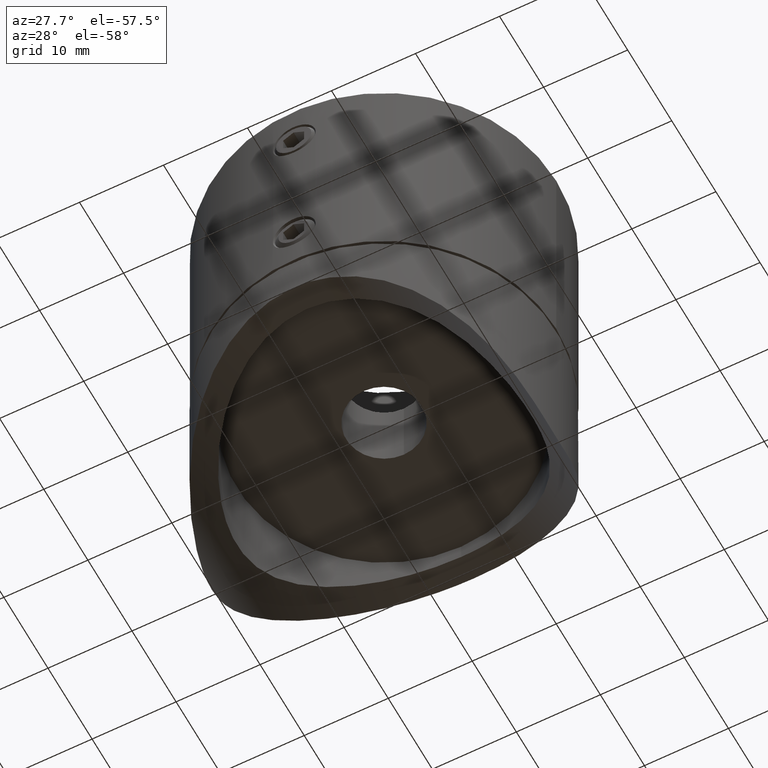
[diagram: clean part render]
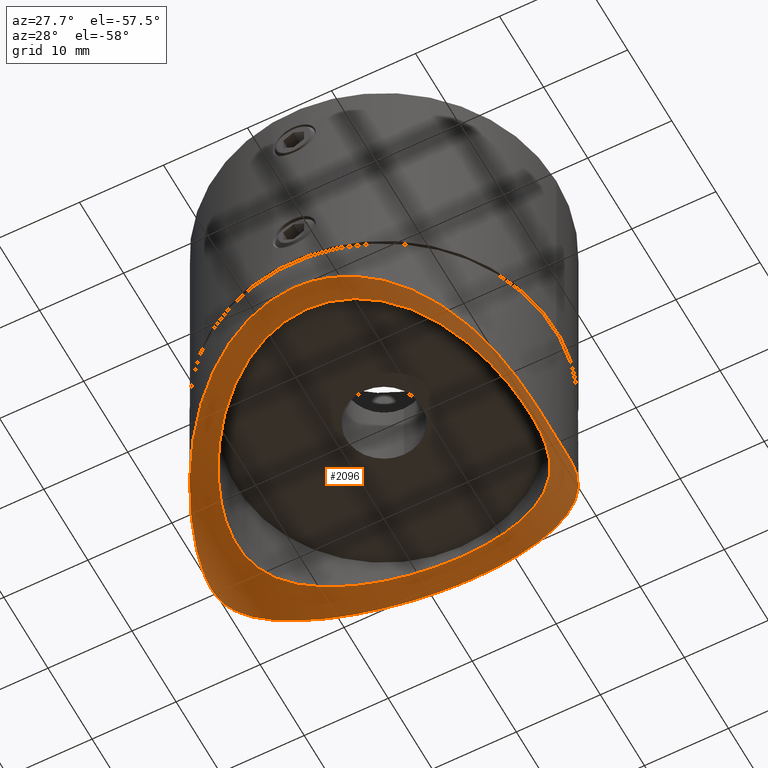
[diagram: same view with one face highlighted and labeled with its STEP entity id]
A machine part, auxiliary view. The second image highlights one B-rep face of the part: STEP entity #2096.
In plain terms, the highlighted cylindrical surface (partial cylindrical patch) has radius 21.2 mm, axis along (0, 1, 0).
Its self-contained STEP definition (entity closure, byte-faithful):
#26 = CARTESIAN_POINT ( 'NONE',  ( 9.841461112915089515, -17.98656134671438522, -2.419577668517835622 ) ) ;
#34 = CARTESIAN_POINT ( 'NONE',  ( -17.24386337891472465, 3.040406141282110397, -8.865839844872155595 ) ) ;
#81 = CARTESIAN_POINT ( 'NONE',  ( 0.7642313618833553868, -20.48663700312583913, -0.01292153580365971305 ) ) ;
#88 = CARTESIAN_POINT ( 'NONE',  ( -9.083739000497836003, -14.96880593915698832, -2.036885764455773185 ) ) ;
#185 = CARTESIAN_POINT ( 'NONE',  ( 11.03039576817645795, -17.29310091935674265, -3.082857097012577263 ) ) ;
#295 = CARTESIAN_POINT ( 'NONE',  ( 7.497553294319823536, -15.82324873608317439, -1.362004697499437977 ) ) ;
#352 = CARTESIAN_POINT ( 'NONE',  ( 13.21346104451343173, -11.48681872448379337, -4.615597683663826167 ) ) ;
#403 = CARTESIAN_POINT ( 'NONE',  ( 17.01303445160383987, 4.141714093986752943, -8.549379967654234136 ) ) ;
#714 = CARTESIAN_POINT ( 'NONE',  ( -11.10735227665930402, -17.24395469007586001, -3.129771455036830741 ) ) ;
#774 = CARTESIAN_POINT ( 'NONE',  ( -17.00600038624242316, -11.46349641894115479, -8.529144034810848041 ) ) ;
#819 = DIRECTION ( 'NONE',  ( 0.000000000000000000, 0.000000000000000000, 1.000000000000000000 ) ) ;
#868 = CARTESIAN_POINT ( 'NONE',  ( -20.27713442623302953, 3.098829431040879268, -15.00583327494984154 ) ) ;
#876 = CARTESIAN_POINT ( 'NONE',  ( -5.067655612918739116, 16.75283616284645305, -0.6125111074320683802 ) ) ;
#933 = CARTESIAN_POINT ( 'NONE',  ( 9.215718466126787689E-16, -20.49999999999998934, -4.266536326910986971E-18 ) ) ;
#991 = CARTESIAN_POINT ( 'NONE',  ( 15.94553080461040828, 12.89831506078872714, -7.217206040546393808 ) ) ;
#998 = CARTESIAN_POINT ( 'NONE',  ( -3.906236867193531026, 17.06110921966444849, -0.3608496445155510712 ) ) ;
#1050 = CARTESIAN_POINT ( 'NONE',  ( -2.878505128604087471, 20.31096422291976467, -0.1827484106595278768 ) ) ;
#1055 = CARTESIAN_POINT ( 'NONE',  ( -8.043638371016083255, 15.55236825713667059, -1.577650751387617012 ) ) ;
#1109 = CARTESIAN_POINT ( 'NONE',  ( 17.03329377143999324, 11.42275566446002344, -8.565989573407854607 ) ) ;
#1174 = CARTESIAN_POINT ( 'NONE',  ( 19.89097583367536259, -5.001487639940303431, -13.85391135167886745 ) ) ;
#1178 = CARTESIAN_POINT ( 'NONE',  ( -14.23847569933384527, 10.18855310605379927, -5.487715213909245549 ) ) ;
#1229 = CARTESIAN_POINT ( 'NONE',  ( 1.696740097316815188, 20.48751249303150601, -0.01207516082844450542 ) ) ;
#1235 = CARTESIAN_POINT ( 'NONE',  ( -16.30806594274449850, 6.372029755616434699, -7.650148169647616569 ) ) ;
#1334 = CARTESIAN_POINT ( 'NONE',  ( 0.3830919584143543943, -20.49730679439932146, -0.002604311522212513028 ) ) ;
#1338 = CARTESIAN_POINT ( 'NONE',  ( -13.91609126854267053, 10.62481324897706259, -5.200591525558388994 ) ) ;
#1403 = CARTESIAN_POINT ( 'NONE',  ( -17.33827104258254082, 2.451050158928962386, -9.000120589566094509 ) ) ;
#1452 = CARTESIAN_POINT ( 'NONE',  ( 14.22241351837834777, -10.21106302151933676, -5.473122119973910849 ) ) ;
#1504 = CARTESIAN_POINT ( 'NONE',  ( 8.913125645696378996, -18.46427535726907010, -1.961554622624016142 ) ) ;
#1626 = CARTESIAN_POINT ( 'NONE',  ( 11.71504083009419261, -13.04522999051553001, -3.505981036777544801 ) ) ;
#1734 = DIRECTION ( 'NONE',  ( -0.000000000000000000, 1.000000000000000000, -0.000000000000000000 ) ) ;
#2027 = CARTESIAN_POINT ( 'NONE',  ( -19.41892124925670871, -6.599070937861008623, -12.68077719138882742 ) ) ;
#2083 = CARTESIAN_POINT ( 'NONE',  ( -20.49432207269039097, -0.6134812045934286973, -15.77526305258913197 ) ) ;
#2096 = ADVANCED_FACE ( 'NONE', ( #4863, #14333 ), #8706, .F. ) ;
#2125 = EDGE_CURVE ( 'NONE', #11399, #11399, #15808, .T. ) ;
#2145 = CARTESIAN_POINT ( 'NONE',  ( -14.21884943580559835, -14.82151765865384085, -5.428080517583356190 ) ) ;
#2202 = CARTESIAN_POINT ( 'NONE',  ( -15.78829421948736034, 13.09036836926673786, -7.039799991362338361 ) ) ;
#2263 = CARTESIAN_POINT ( 'NONE',  ( -15.90895934899534758, -12.94354335384951682, -7.175474793278679542 ) ) ;
#2318 = CARTESIAN_POINT ( 'NONE',  ( 13.32435051335238896, 15.63484417006679905, -4.659818248977414257 ) ) ;
#2380 = CARTESIAN_POINT ( 'NONE',  ( 20.43608852305566970, -1.659733611259567754, -15.55958760687685150 ) ) ;
#2441 = CARTESIAN_POINT ( 'NONE',  ( 16.68841118729813999, 11.92155258730217504, -8.112776780501754104 ) ) ;
#2447 = CARTESIAN_POINT ( 'NONE',  ( -7.568379588315958806, -15.78940386503816029, -1.388997083494236451 ) ) ;
#2491 = CARTESIAN_POINT ( 'NONE',  ( -3.620119219532377475, 20.19172353382225893, -0.2979908851741180364 ) ) ;
#2498 = CARTESIAN_POINT ( 'NONE',  ( -17.46699287505471787, 1.235900291459521405, -9.185140022539869165 ) ) ;
#2543 = CARTESIAN_POINT ( 'NONE',  ( 20.41130226497747557, 1.913336815779760558, -15.47084501130666467 ) ) ;
#2550 = CARTESIAN_POINT ( 'NONE',  ( -15.65583057623333119, 7.897346450912092308, -6.889829957757155121 ) ) ;
#2599 = CARTESIAN_POINT ( 'NONE',  ( 0.9541544136438472323, -20.47866037672264028, -0.02063448680320939879 ) ) ;
#2602 = CARTESIAN_POINT ( 'NONE',  ( -12.87097464404788560, 11.86932399460175169, -4.347759016917471797 ) ) ;
#2755 = CARTESIAN_POINT ( 'NONE',  ( 4.847376137837566823, -19.92214718952595121, -0.5582583929048398064 ) ) ;
#2914 = CARTESIAN_POINT ( 'NONE',  ( -1.277528164808326538, -17.49584459206828413, -0.003430165658339822971 ) ) ;
#3077 = CARTESIAN_POINT ( 'NONE',  ( 17.37796659204369121, 2.085241071745541852, -9.057133369806717127 ) ) ;
#3129 = CARTESIAN_POINT ( 'NONE',  ( 17.33462974748771401, -2.475738546407064700, -8.994938054514005188 ) ) ;
#3187 = CARTESIAN_POINT ( 'NONE',  ( 16.49501262945719660, -5.872939585915643690, -7.879567121977553157 ) ) ;
#3303 = CARTESIAN_POINT ( 'NONE',  ( -11.66814349195485256, -16.86842062671308895, -3.487899409657549743 ) ) ;
#3359 = CARTESIAN_POINT ( 'NONE',  ( -16.89571969682834052, 11.62530910430284159, -8.382478658806119753 ) ) ;
#3403 = CARTESIAN_POINT ( 'NONE',  ( 8.086705730690027849, 15.52996890337844427, -1.595404497979376224 ) ) ;
#3416 = CARTESIAN_POINT ( 'NONE',  ( -20.20443642303519383, -3.485553561580062354, -14.77716666690977476 ) ) ;
#3467 = CARTESIAN_POINT ( 'NONE',  ( -8.978697800540446750, -18.43253778770257156, -1.992014549829556724 ) ) ;
#3521 = CARTESIAN_POINT ( 'NONE',  ( -18.52372103676701087, -8.865506147782214796, -10.83791561958749838 ) ) ;
#3580 = CARTESIAN_POINT ( 'NONE',  ( 19.22160244616708624, 7.151640927736705677, -12.24273817302588974 ) ) ;
#3587 = CARTESIAN_POINT ( 'NONE',  ( -9.524517569277668017, 14.69170826759712156, -2.252846591963477696 ) ) ;
#3636 = CARTESIAN_POINT ( 'NONE',  ( 18.44834936037196016, -9.019679096598405721, -10.70461715553551230 ) ) ;
#3693 = CARTESIAN_POINT ( 'NONE',  ( 20.14695331553193114, 3.802390341181701938, -14.59827626580708859 ) ) ;
#3700 = CARTESIAN_POINT ( 'NONE',  ( -6.507517457610140887, -16.25539481356940286, -1.015639155783585768 ) ) ;
#3752 = CARTESIAN_POINT ( 'NONE',  ( 16.92360664457421038, -11.58453050805760220, -8.419451530486103508 ) ) ;
#3796 = AXIS2_PLACEMENT_3D ( 'NONE', #13305, #1734, #819 ) ;
#3807 = CARTESIAN_POINT ( 'NONE',  ( 1.522016069194902732, -20.44693700694597283, -0.05130727842084750051 ) ) ;
#3813 = CARTESIAN_POINT ( 'NONE',  ( -16.52182079844146756, -5.797052159638316660, -7.912908347491365291 ) ) ;
#3921 = CARTESIAN_POINT ( 'NONE',  ( -17.50067843918114363, -0.5873231742949008849, -9.234789777794508936 ) ) ;
#3975 = CARTESIAN_POINT ( 'NONE',  ( 3.018721505754626389, -20.29045195685616676, -0.2025719502125131188 ) ) ;
#4142 = CARTESIAN_POINT ( 'NONE',  ( -4.252397677670929355, -16.97813969774495391, -0.4287410033487076277 ) ) ;
#4245 = CARTESIAN_POINT ( 'NONE',  ( 16.84316366280751254, -4.783795444377584083, -8.322608512135147407 ) ) ;
#4359 = CARTESIAN_POINT ( 'NONE',  ( 15.15509232401279860, 8.816608068498799966, -6.352814690414372301 ) ) ;
#4418 = CARTESIAN_POINT ( 'NONE',  ( 17.47068367874127759, 1.180264632735980923, -9.190547752342899557 ) ) ;
#4546 = EDGE_LOOP ( 'NONE', ( #15840 ) ) ;
#4608 = CARTESIAN_POINT ( 'NONE',  ( -19.34598171857588866, 6.809435502680198482, -12.51623025835363734 ) ) ;
#4670 = CARTESIAN_POINT ( 'NONE',  ( -20.42687228996033966, -1.739898111126267022, -15.52675581487862821 ) ) ;
#4722 = CARTESIAN_POINT ( 'NONE',  ( -20.49663337245055672, 0.5337579812902039089, -15.78445365410453149 ) ) ;
#4729 = CARTESIAN_POINT ( 'NONE',  ( -4.198211667982922890, 16.99162043731080018, -0.4177193951831520979 ) ) ;
#4780 = CARTESIAN_POINT ( 'NONE',  ( -20.50226138884681149, -0.2327125493970433612, -15.80579943155638034 ) ) ;
#4838 = CARTESIAN_POINT ( 'NONE',  ( 11.58936276531934872, -16.92248596471906907, -3.436388386139449747 ) ) ;
#4863 = FACE_OUTER_BOUND ( 'NONE', #6406, .T. ) ;
#4889 = CARTESIAN_POINT ( 'NONE',  ( 8.118913609752830496, 18.83692048072827063, -1.603763549573936409 ) ) ;
#4946 = CARTESIAN_POINT ( 'NONE',  ( 9.387150974103604995, 18.22780547730687317, -2.188407184620552837 ) ) ;
#5005 = CARTESIAN_POINT ( 'NONE',  ( -1.751095325312872264, 20.42856896656491017, -0.06906700597614252868 ) ) ;
#5060 = CARTESIAN_POINT ( 'NONE',  ( 19.35473527081932232, -6.784289525167245039, -12.53590856107385854 ) ) ;
#5069 = CARTESIAN_POINT ( 'NONE',  ( -17.46985179758621598, -1.193845812649097837, -9.189324701120186845 ) ) ;
#5117 = CARTESIAN_POINT ( 'NONE',  ( -16.32442710002123931, -6.330230443123496364, -7.669859431588230692 ) ) ;
#5227 = CARTESIAN_POINT ( 'NONE',  ( -13.94038394261453639, -10.59293742111977643, -5.221764300403955339 ) ) ;
#5279 = CARTESIAN_POINT ( 'NONE',  ( 7.956851302057527775, -18.90586179831648295, -1.537475375376008424 ) ) ;
#5286 = CARTESIAN_POINT ( 'NONE',  ( 0.2465697910313439101, -17.50091767167528189, 0.0007575105885289126458 ) ) ;
#5508 = CARTESIAN_POINT ( 'NONE',  ( 9.010682868421870495, -15.01277645573478203, -2.002495604114043815 ) ) ;
#5541 = EDGE_CURVE ( 'NONE', #8162, #8162, #9707, .T. ) ;
#5618 = CARTESIAN_POINT ( 'NONE',  ( 16.52469693459130085, 5.788760017350249143, -7.916501575781205169 ) ) ;
#5669 = CARTESIAN_POINT ( 'NONE',  ( 14.25871095076460016, 10.16016792766058963, -5.506112789873336411 ) ) ;
#5834 = CARTESIAN_POINT ( 'NONE',  ( 3.058516256898806240, 17.24129890699676793, -0.2131673490597825460 ) ) ;
#5848 = CARTESIAN_POINT ( 'NONE',  ( -20.46681708666152844, -1.181227092065037843, -15.67273572342680765 ) ) ;
#5903 = CARTESIAN_POINT ( 'NONE',  ( -20.41053928781584403, -1.921523092601340243, -15.46812153448825100 ) ) ;
#5948 = CARTESIAN_POINT ( 'NONE',  ( 2.450482594706057338, 17.33840392213179626, -0.1332271744567321836 ) ) ;
#5963 = CARTESIAN_POINT ( 'NONE',  ( -13.12364497339234326, 15.80428829669920354, -4.499481910833316611 ) ) ;
#6012 = CARTESIAN_POINT ( 'NONE',  ( -19.94435088291013258, -4.786188735814209672, -14.00035477759032787 ) ) ;
#6061 = CARTESIAN_POINT ( 'NONE',  ( -15.38208838164237235, 13.56618386351012973, -6.598497805225533419 ) ) ;
#6113 = CARTESIAN_POINT ( 'NONE',  ( 20.27888976542784150, -3.086682699966034171, -15.01168580510541872 ) ) ;
#6171 = CARTESIAN_POINT ( 'NONE',  ( -1.372788483777772850, 20.45753804440224144, -0.04105766633444453417 ) ) ;
#6228 = CARTESIAN_POINT ( 'NONE',  ( 10.00140248597485737, 17.89814080408042685, -2.504246121058995023 ) ) ;
#6237 = CARTESIAN_POINT ( 'NONE',  ( -6.466438711126498262, 16.27179417740867606, -1.002424180671938503 ) ) ;
#6287 = CARTESIAN_POINT ( 'NONE',  ( 20.42750280538819752, 1.732403070217047203, -15.52903041020935682 ) ) ;
#6337 = CARTESIAN_POINT ( 'NONE',  ( 16.57517562174928116, -12.07839893601357240, -7.969684687258277833 ) ) ;
#6395 = CARTESIAN_POINT ( 'NONE',  ( 9.226220393829663635, -18.30976797123930666, -2.109806783839629052 ) ) ;
#6401 = CARTESIAN_POINT ( 'NONE',  ( -13.25709795518398515, -11.43651964025425904, -4.650447911015619162 ) ) ;
#6406 = EDGE_LOOP ( 'NONE', ( #10985 ) ) ;
#6456 = CARTESIAN_POINT ( 'NONE',  ( -16.50506731380759717, 5.844912491493738926, -7.892026179087148208 ) ) ;
#6501 = CARTESIAN_POINT ( 'NONE',  ( 7.296751866461145042, -19.17109791775982686, -1.282242173744694735 ) ) ;
#6506 = CARTESIAN_POINT ( 'NONE',  ( -17.19095212691278007, -3.287435342662163418, -8.793489093231034559 ) ) ;
#6563 = CARTESIAN_POINT ( 'NONE',  ( -3.957094607793416596, -17.04942438003020300, -0.3704163064312105402 ) ) ;
#6720 = CARTESIAN_POINT ( 'NONE',  ( 5.875721920608387272, -16.49492799653786079, -0.8220339605937884153 ) ) ;
#6779 = CARTESIAN_POINT ( 'NONE',  ( 9.494865487268153714, -14.71098971236246200, -2.237894517711387365 ) ) ;
#6940 = CARTESIAN_POINT ( 'NONE',  ( 11.75184374789024666, 13.01284439820549999, -3.530066077978521122 ) ) ;
#7004 = CARTESIAN_POINT ( 'NONE',  ( 12.89562394974593573, 11.84273493110535291, -4.366521986897741847 ) ) ;
#7119 = CARTESIAN_POINT ( 'NONE',  ( 7.564560770108174736, 15.79141555487498572, -1.387400769369391940 ) ) ;
#7132 = CARTESIAN_POINT ( 'NONE',  ( -17.97537472250883184, -9.929707987710784778, -9.904670713291322315 ) ) ;
#7190 = CARTESIAN_POINT ( 'NONE',  ( -18.43274174719996239, 9.052168211354857164, -10.67671455753958121 ) ) ;
#7257 = CARTESIAN_POINT ( 'NONE',  ( -6.151346412837717992, 19.55871947325180571, -0.9088060214795429248 ) ) ;
#7309 = CARTESIAN_POINT ( 'NONE',  ( -19.21170983849740921, -7.178374827038802586, -12.22138855278443437 ) ) ;
#7367 = CARTESIAN_POINT ( 'NONE',  ( -8.015486598542638674, -18.88130897323156887, -1.561088330099832833 ) ) ;
#7378 = CARTESIAN_POINT ( 'NONE',  ( -4.778612427083569258, 16.83760700237858998, -0.5434506362205558938 ) ) ;
#7433 = CARTESIAN_POINT ( 'NONE',  ( 17.99476556905258207, 9.893845905984123945, -9.936178411902057306 ) ) ;
#7487 = CARTESIAN_POINT ( 'NONE',  ( 20.35644639149187185, 2.448175239211681120, -15.27775393475622145 ) ) ;
#7544 = CARTESIAN_POINT ( 'NONE',  ( -0.2263734483224016381, 20.50235836449718363, 0.002280488986525659994 ) ) ;
#7603 = CARTESIAN_POINT ( 'NONE',  ( 20.40320062870918250, -2.021669893133414941, -15.44052478276726426 ) ) ;
#7665 = CARTESIAN_POINT ( 'NONE',  ( 15.42308226883704236, -13.51942255355326239, -6.641935572222063655 ) ) ;
#7722 = CARTESIAN_POINT ( 'NONE',  ( -11.76022229711522016, -13.00464765559365254, -3.535992552796882737 ) ) ;
#7729 = CARTESIAN_POINT ( 'NONE',  ( -1.192622389734054877E-15, 17.50000000000000000, -5.897859040141040032E-18 ) ) ;
#7826 = CARTESIAN_POINT ( 'NONE',  ( -9.562018155268978248, -14.66722832022718848, -2.271821499043444881 ) ) ;
#7880 = CARTESIAN_POINT ( 'NONE',  ( 13.89762547964845396, -10.64887614781257774, -5.184571220463790375 ) ) ;
#7922 = CARTESIAN_POINT ( 'NONE',  ( 5.920686856686777411, -19.62986888477626479, -0.8402099279582746494 ) ) ;
#8046 = CARTESIAN_POINT ( 'NONE',  ( 6.430025487511463744, -16.28629111231520454, -0.9907413482544245031 ) ) ;
#8099 = CARTESIAN_POINT ( 'NONE',  ( 4.158952617992463630, -17.00922726916944328, -0.4033924051184962778 ) ) ;
#8151 = CARTESIAN_POINT ( 'NONE',  ( 17.19306620750767678, 3.276470449463080303, -8.796417594185959032 ) ) ;
#8162 = VERTEX_POINT ( 'NONE', #9130 ) ;
#8208 = CARTESIAN_POINT ( 'NONE',  ( 15.67295982877751470, 7.865093308166934527, -6.908389598791436548 ) ) ;
#8264 = CARTESIAN_POINT ( 'NONE',  ( 16.86658117550648939, 4.700403255957337656, -8.353390384371264688 ) ) ;
#8313 = CARTESIAN_POINT ( 'NONE',  ( 17.23968166261209944, -3.064352586436271064, -8.859963496478812317 ) ) ;
#8431 = CARTESIAN_POINT ( 'NONE',  ( 9.554674410092220072, 14.67194539536051678, -2.268156560611843009 ) ) ;
#8445 = CARTESIAN_POINT ( 'NONE',  ( -20.16341109901306083, 3.755762394345791400, -14.63837596914218686 ) ) ;
#8504 = CARTESIAN_POINT ( 'NONE',  ( -14.08381127604604366, 14.94978964191773763, -5.307350842626636478 ) ) ;
#8561 = CARTESIAN_POINT ( 'NONE',  ( -19.78554300062381799, -5.401345008256844160, -13.57084880749763656 ) ) ;
#8622 = CARTESIAN_POINT ( 'NONE',  ( -20.43557800254245294, 1.666346726742690132, -15.55772712976704852 ) ) ;
#8678 = CARTESIAN_POINT ( 'NONE',  ( -1.548205718626115779, -20.50000000000000355, 1.445602896647333986E-16 ) ) ;
#8706 = CYLINDRICAL_SURFACE ( 'NONE', #3796, 21.19999999999999929 ) ;
#8737 = CARTESIAN_POINT ( 'NONE',  ( 15.54594185057103140, 13.37799421477956585, -6.773213270913272410 ) ) ;
#8794 = CARTESIAN_POINT ( 'NONE',  ( 20.49437964968215198, 0.6105614207077942890, -15.77548850841519190 ) ) ;
#8855 = CARTESIAN_POINT ( 'NONE',  ( 11.74068973872171995, 16.81785871225319795, -3.536048383814050844 ) ) ;
#8907 = CARTESIAN_POINT ( 'NONE',  ( 19.14440100001821321, -7.355505532082024622, -12.07883921071141309 ) ) ;
#8914 = CARTESIAN_POINT ( 'NONE',  ( -10.90237164851524376, 13.73459862639943196, -2.988395973494066382 ) ) ;
#8959 = CARTESIAN_POINT ( 'NONE',  ( -5.799696756389565167, 19.66600338066667675, -0.8053680557211004842 ) ) ;
#8964 = CARTESIAN_POINT ( 'NONE',  ( -17.24420342911597004, -2.996178694034924650, -8.867773003833441692 ) ) ;
#9070 = CARTESIAN_POINT ( 'NONE',  ( 5.210079461816592428, -19.83031409963058778, -0.6468820702524727961 ) ) ;
#9074 = CARTESIAN_POINT ( 'NONE',  ( -13.23132877130680818, 11.46630680365898947, -4.629827801980091806 ) ) ;
#9126 = CARTESIAN_POINT ( 'NONE',  ( -8.083332585414096272, -15.53187689195640964, -1.593904117666210762 ) ) ;
#9130 = CARTESIAN_POINT ( 'NONE',  ( 0.000000000000000000, 17.50000000000000000, 0.000000000000000000 ) ) ;
#9176 = CARTESIAN_POINT ( 'NONE',  ( -4.832199470873418612, -16.82230548643362411, -0.5559225299671228804 ) ) ;
#9222 = CARTESIAN_POINT ( 'NONE',  ( 10.14447176236213366, -17.81733524450424255, -2.581600039071414887 ) ) ;
#9332 = CARTESIAN_POINT ( 'NONE',  ( 10.88102491510843883, -13.75194722761068178, -2.975320124407874633 ) ) ;
#9707 = B_SPLINE_CURVE_WITH_KNOTS ( 'NONE', 3,
 ( #7729, #15502, #11154, #998, #4729, #7378, #876, #12530, #6237, #13870, #1055, #10037, #3587, #8914, #15373, #2602, #9074, #1338, #1178, #10354, #2550, #1235, #6456, #10190, #15483, #34, #1403, #2498, #12765, #3921, #5069, #11502, #14090, #8964, #6506, #11556, #11609, #3813, #5117, #11666, #12972, #14150, #5227, #6401, #15433, #7722, #15536, #7826, #88, #9126, #2447, #3700, #13031, #13087, #9176, #4142, #6563, #11891, #2914, #5286, #11722, #15700, #14306, #11780, #13187, #8099, #14455, #6720, #8046, #295, #15589, #5508, #6779, #9332, #1626, #10632, #352, #7880, #1452, #10463, #15639, #11994, #3187, #4245, #16087, #8313, #3129, #13406, #14784, #10795, #13520, #13291, #4418, #3077, #14559, #15862, #8151, #403, #8264, #5618, #13465, #8208, #4359, #5669, #14731, #14672, #7004, #6940, #15010, #8431, #11190, #3403, #7119, #13681, #11137, #5834, #5948, #16369, #16144, #11027 ),
 .UNSPECIFIED., .T., .F.,
 ( 4, 2, 2, 2, 2, 2, 2, 2, 2, 2, 2, 2, 2, 2, 2, 2, 2, 2, 2, 2, 2, 2, 2, 2, 2, 2, 2, 2, 2, 2, 2, 2, 2, 2, 2, 2, 2, 2, 2, 2, 2, 2, 2, 2, 2, 2, 2, 2, 2, 2, 2, 2, 2, 2, 2, 2, 2, 2, 2, 4 ),
 ( 0.000000000000000000, 0.003641065193839746524, 0.004551331492299683264, 0.005461597790759619570, 0.007282130387679493048, 0.009102662984599369997, 0.01092319558151924434, 0.01456426077535900171, 0.01638479337227887606, 0.01820532596919875734, 0.02184639116303851644, 0.02366692375995839426, 0.02548745635687826860, 0.02730798895379814642, 0.02912852155071801730, 0.03094905414763789164, 0.03185932044609782882, 0.03276958674455775905, 0.03459011934147763340, 0.03641065193839751468, 0.04005171713223726337, 0.04187224972915714466, 0.04369278232607701901, 0.04733384751991678158, 0.04915438011683666286, 0.05097491271375653721, 0.05279544531067642543, 0.05370571160913636954, 0.05461597790759631366, 0.05825704310143608317, 0.05916730939989602728, 0.06007757569835595751, 0.06189810829527584574, 0.06371864089219572702, 0.06553917348911561525, 0.06735970608603550347, 0.06918023868295539169, 0.07282130387679516814, 0.07464183647371504249, 0.07646236907063493071, 0.08010343426447470716, 0.08192396686139458151, 0.08374449945831448361, 0.08556503205523435795, 0.08647529835369430207, 0.08738556465215423230, 0.08920609724907412053, 0.09011636354753406464, 0.09102662984599399487, 0.09284716244291389697, 0.09466769503983377132, 0.09830876023367354777, 0.1001292928305934360, 0.1019498254275133103, 0.1055908906213530868, 0.1074114232182729750, 0.1092319558151928632, 0.1128730210090326397, 0.1146935536059525418, 0.1165140862028724300 ),
 .UNSPECIFIED. ) ;
#9735 = CARTESIAN_POINT ( 'NONE',  ( -20.14410480801011971, -3.817554868338076890, -14.58955014002793327 ) ) ;
#9793 = CARTESIAN_POINT ( 'NONE',  ( -9.759492849523116575, 18.04105072795436371, -2.367604406861956612 ) ) ;
#9910 = CARTESIAN_POINT ( 'NONE',  ( -20.45499357978938448, -1.370253494148251150, -15.62899930128004300 ) ) ;
#9962 = CARTESIAN_POINT ( 'NONE',  ( -5.967364181125295985, -19.62587155741459100, -0.8441464736162878069 ) ) ;
#10027 = CARTESIAN_POINT ( 'NONE',  ( -0.6110257220019813529, 20.49443970023112982, -0.005377180340547163019 ) ) ;
#10037 = CARTESIAN_POINT ( 'NONE',  ( -9.040706643407375509, 14.99472907514917885, -2.016613133597837226 ) ) ;
#10084 = CARTESIAN_POINT ( 'NONE',  ( 20.49665413755836241, -0.5317827386158562319, -15.78453239177145662 ) ) ;
#10135 = CARTESIAN_POINT ( 'NONE',  ( 19.79109227953179229, 5.380692980799813618, -13.58542566775103211 ) ) ;
#10184 = CARTESIAN_POINT ( 'NONE',  ( -5.082935073845765039, 19.86333160548695886, -0.6150233023268757426 ) ) ;
#10190 = CARTESIAN_POINT ( 'NONE',  ( -16.85297101848544443, 4.749485963410105427, -8.335444737515723901 ) ) ;
#10236 = CARTESIAN_POINT ( 'NONE',  ( 6.081441858357864660, 19.58069075055705355, -0.8876220132233634263 ) ) ;
#10354 = CARTESIAN_POINT ( 'NONE',  ( -15.13894127354767249, 8.844528006494737582, -6.336191912062649756 ) ) ;
#10463 = CARTESIAN_POINT ( 'NONE',  ( 15.12803009328502313, -8.863640491661691101, -6.324864973362999798 ) ) ;
#10511 = CARTESIAN_POINT ( 'NONE',  ( 6.269369363453443533, -19.52116552816074702, -0.9450024946655183333 ) ) ;
#10632 = CARTESIAN_POINT ( 'NONE',  ( 12.85313066262624737, -11.88863255208570635, -4.334142347634096559 ) ) ;
#10795 = CARTESIAN_POINT ( 'NONE',  ( 17.49067967013614577, -0.6486536308099889458, -9.220141692321247362 ) ) ;
#10985 = ORIENTED_EDGE ( 'NONE', *, *, #2125, .T. ) ;
#11027 = CARTESIAN_POINT ( 'NONE',  ( -1.192622389734054877E-15, 17.50000000000000000, -5.897859040141040032E-18 ) ) ;
#11040 = CARTESIAN_POINT ( 'NONE',  ( -19.88633720725686871, 5.020208241682424521, -13.84121956100028861 ) ) ;
#11100 = CARTESIAN_POINT ( 'NONE',  ( -7.852822898520588346, 18.94945221642729294, -1.495555970011380076 ) ) ;
#11137 = CARTESIAN_POINT ( 'NONE',  ( 4.835722789783265085, 16.86218917806517581, -0.5238676065974767759 ) ) ;
#11148 = CARTESIAN_POINT ( 'NONE',  ( -9.293906223008299605, -18.27555936743856080, -2.142616426194312140 ) ) ;
#11154 = CARTESIAN_POINT ( 'NONE',  ( -2.437449593343936183, 17.37098119758821113, -0.1068536368407234372 ) ) ;
#11190 = CARTESIAN_POINT ( 'NONE',  ( 9.079925644482283786, 14.97096169273535082, -2.035190461074360968 ) ) ;
#11209 = CARTESIAN_POINT ( 'NONE',  ( -7.349973751025523860, -19.15103536411407248, -1.301555490013769134 ) ) ;
#11265 = CARTESIAN_POINT ( 'NONE',  ( -16.65823007895886221, -11.96384857633355203, -8.074236575405667082 ) ) ;
#11328 = CARTESIAN_POINT ( 'NONE',  ( 18.53884741415230053, 8.833176709761765721, -10.86552871712183332 ) ) ;
#11385 = CARTESIAN_POINT ( 'NONE',  ( 19.72845305732260357, -5.605399337229205692, -13.42437154754750317 ) ) ;
#11399 = VERTEX_POINT ( 'NONE', #11612 ) ;
#11443 = CARTESIAN_POINT ( 'NONE',  ( 19.42728433328673177, 6.574177819636707554, -12.70001768755253657 ) ) ;
#11496 = CARTESIAN_POINT ( 'NONE',  ( 17.89621339343677064, -10.07049065270147992, -9.780320917641583733 ) ) ;
#11502 = CARTESIAN_POINT ( 'NONE',  ( -17.37589340789023851, -2.102635415648134831, -9.054163716778358406 ) ) ;
#11550 = CARTESIAN_POINT ( 'NONE',  ( 20.46711594121103417, 1.175908443487760691, -15.67384441171482834 ) ) ;
#11556 = CARTESIAN_POINT ( 'NONE',  ( -17.01117711243454167, -4.148989985207032660, -8.546887936648936090 ) ) ;
#11609 = CARTESIAN_POINT ( 'NONE',  ( -16.86473363122540192, -4.707136686478857968, -8.350948415319031426 ) ) ;
#11612 = CARTESIAN_POINT ( 'NONE',  ( 0.000000000000000000, -20.50000000000000000, 0.000000000000000000 ) ) ;
#11666 = CARTESIAN_POINT ( 'NONE',  ( -15.67274051615545005, -7.864486959813742573, -6.908334579454411539 ) ) ;
#11722 = CARTESIAN_POINT ( 'NONE',  ( 0.5525521460404745344, -17.49397815044266125, -0.004972312385630514066 ) ) ;
#11774 = CARTESIAN_POINT ( 'NONE',  ( 0.1935257148282600037, -20.49999999999998934, -2.286988957586600438E-17 ) ) ;
#11780 = CARTESIAN_POINT ( 'NONE',  ( 2.385604629994775738, -17.34738656227536779, -0.1258313267730850615 ) ) ;
#11891 = CARTESIAN_POINT ( 'NONE',  ( -2.478365965337755661, -17.36580585369389595, -0.1111362216811201120 ) ) ;
#11994 = CARTESIAN_POINT ( 'NONE',  ( 16.29850297859011121, -6.396310954883131394, -7.638650734676912357 ) ) ;
#12347 = CARTESIAN_POINT ( 'NONE',  ( -19.72258526807121370, 5.626282152922493118, -13.40933276765939475 ) ) ;
#12404 = CARTESIAN_POINT ( 'NONE',  ( -9.138038171848075208, 18.36422677784279500, -2.057685605540508611 ) ) ;
#12465 = CARTESIAN_POINT ( 'NONE',  ( -3.051232131065082953, -20.32699446304642876, -0.1674230037920176606 ) ) ;
#12522 = CARTESIAN_POINT ( 'NONE',  ( -13.26582893818980757, -15.68516912682030373, -4.612230346797155711 ) ) ;
#12530 = CARTESIAN_POINT ( 'NONE',  ( -5.918110729776234535, 16.47970197034513973, -0.8343599501236792504 ) ) ;
#12583 = CARTESIAN_POINT ( 'NONE',  ( 13.18302118563308056, -15.75415483446467668, -4.546926412335879242 ) ) ;
#12645 = CARTESIAN_POINT ( 'NONE',  ( -4.717972309225835659, 19.95321973759782352, -0.5282669004422579917 ) ) ;
#12711 = CARTESIAN_POINT ( 'NONE',  ( 5.007465403856475206, 19.88251642347044879, -0.5965058286167209678 ) ) ;
#12758 = CARTESIAN_POINT ( 'NONE',  ( 7.458818693536107602, 19.10872904175253595, -1.342272025023574011 ) ) ;
#12765 = CARTESIAN_POINT ( 'NONE',  ( -17.49929898055125221, 0.6270801639039433883, -9.232772389460096818 ) ) ;
#12808 = CARTESIAN_POINT ( 'NONE',  ( 9.074433166894845471, 18.38555807011405463, -2.037093826732125024 ) ) ;
#12972 = CARTESIAN_POINT ( 'NONE',  ( -15.15669477287706890, -8.813930905346280653, -6.354429424892796163 ) ) ;
#13031 = CARTESIAN_POINT ( 'NONE',  ( -5.961617189304858400, -16.46386812919210030, -0.8471719520393391489 ) ) ;
#13083 = CARTESIAN_POINT ( 'NONE',  ( 3.755957794106828729, -20.16677458841999382, -0.3220932794513570174 ) ) ;
#13087 = CARTESIAN_POINT ( 'NONE',  ( -5.117694531151093962, -16.73758229278162091, -0.6249222370547646843 ) ) ;
#13187 = CARTESIAN_POINT ( 'NONE',  ( 2.983061729832287234, -17.25433400305481868, -0.2024497369288483506 ) ) ;
#13291 = CARTESIAN_POINT ( 'NONE',  ( 17.50125685938019870, 0.5734165011058272032, -9.235635678553059336 ) ) ;
#13305 = CARTESIAN_POINT ( 'NONE',  ( 0.000000000000000000, -20.50000000000000000, -21.19999999999999929 ) ) ;
#13406 = CARTESIAN_POINT ( 'NONE',  ( 17.43205853877173439, -1.570191886043998508, -9.134902963724478298 ) ) ;
#13465 = CARTESIAN_POINT ( 'NONE',  ( 16.32835458828825992, 6.320417476265907553, -7.674550438054654755 ) ) ;
#13520 = CARTESIAN_POINT ( 'NONE',  ( 17.49931240907351793, -0.3424394035174895268, -9.232792032883180511 ) ) ;
#13580 = CARTESIAN_POINT ( 'NONE',  ( -20.31000627484060672, -2.805704888089497473, -15.11923653534683609 ) ) ;
#13636 = CARTESIAN_POINT ( 'NONE',  ( -19.13410200592747046, 7.382450124326641827, -12.05710567531377997 ) ) ;
#13681 = CARTESIAN_POINT ( 'NONE',  ( 5.959344568629608041, 16.49550701851789114, -0.8232268505211671750 ) ) ;
#13696 = CARTESIAN_POINT ( 'NONE',  ( -5.244423989607679637, -19.83198672276226304, -0.6452962762293070753 ) ) ;
#13751 = CARTESIAN_POINT ( 'NONE',  ( -20.48272210559944639, 0.9206817346460635099, -15.73134508448817748 ) ) ;
#13806 = CARTESIAN_POINT ( 'NONE',  ( -17.87629460838897089, 10.10646894081217795, -9.748586083059535667 ) ) ;
#13864 = CARTESIAN_POINT ( 'NONE',  ( 20.31157086902909370, 2.794194260453726208, -15.12450076872140414 ) ) ;
#13870 = CARTESIAN_POINT ( 'NONE',  ( -7.529209296368422066, 15.80813470110201102, -1.374059771255732310 ) ) ;
#13922 = CARTESIAN_POINT ( 'NONE',  ( 14.26948702593930030, 14.77226756272023955, -5.474362543664383018 ) ) ;
#13969 = CARTESIAN_POINT ( 'NONE',  ( 11.18494521239382067, 17.19354625660193037, -3.177870987940736747 ) ) ;
#14030 = CARTESIAN_POINT ( 'NONE',  ( 20.20683129176966730, 3.471512909194228058, -14.78473919292314420 ) ) ;
#14086 = CARTESIAN_POINT ( 'NONE',  ( 20.50224555977722929, 0.2314102901194227124, -15.80573941516948899 ) ) ;
#14090 = CARTESIAN_POINT ( 'NONE',  ( -17.33660141572964264, -2.404556096963612610, -8.998007296271838484 ) ) ;
#14150 = CARTESIAN_POINT ( 'NONE',  ( -14.25997313160910096, -10.15841325682220564, -5.507254643611635636 ) ) ;
#14306 = CARTESIAN_POINT ( 'NONE',  ( 1.474325271058967601, -17.44045863769164484, -0.04913030925951000771 ) ) ;
#14333 = FACE_BOUND ( 'NONE', #4546, .T. ) ;
#14455 = CARTESIAN_POINT ( 'NONE',  ( 4.737382691173066540, -16.85716354956136698, -0.5277283969834446475 ) ) ;
#14559 = CARTESIAN_POINT ( 'NONE',  ( 17.33903062756211000, 2.387265017376360987, -9.001458229349255546 ) ) ;
#14672 = CARTESIAN_POINT ( 'NONE',  ( 13.25914337846816338, 11.43404911785446210, -4.652133195144248390 ) ) ;
#14731 = CARTESIAN_POINT ( 'NONE',  ( 13.93974388148504673, 10.59367277571309174, -5.221254134300045813 ) ) ;
#14784 = CARTESIAN_POINT ( 'NONE',  ( 17.45707726353512967, -1.262964873241566588, -9.171228915207562338 ) ) ;
#14862 = CARTESIAN_POINT ( 'NONE',  ( -20.40242034148084826, 2.029772229852725207, -15.43773354496344652 ) ) ;
#14924 = CARTESIAN_POINT ( 'NONE',  ( -9.913008728686957483, -17.94728450267115605, -2.457192859493874781 ) ) ;
#14971 = CARTESIAN_POINT ( 'NONE',  ( -7.187349157908086816, 19.21255559728277973, -1.242332923384470655 ) ) ;
#15010 = CARTESIAN_POINT ( 'NONE',  ( 10.91988103551904210, 13.71996126960128848, -2.999390269674654164 ) ) ;
#15023 = CARTESIAN_POINT ( 'NONE',  ( -15.50569388927720382, -13.42476157173772044, -6.729832831942911930 ) ) ;
#15083 = CARTESIAN_POINT ( 'NONE',  ( -11.51589767538391840, 16.97271331338318134, -3.388530628029457148 ) ) ;
#15138 = CARTESIAN_POINT ( 'NONE',  ( 10.30369606800375060, 17.72573285956731937, -2.669245004018482970 ) ) ;
#15197 = CARTESIAN_POINT ( 'NONE',  ( 3.190691024730530234, 20.30507809369298045, -0.1886126055081238095 ) ) ;
#15256 = CARTESIAN_POINT ( 'NONE',  ( 19.94870312144374935, 4.767687551868412754, -14.01256788443762247 ) ) ;
#15312 = CARTESIAN_POINT ( 'NONE',  ( 20.48285602702040009, -0.9170816533256236358, -15.73185817091226468 ) ) ;
#15366 = CARTESIAN_POINT ( 'NONE',  ( 15.82552132641115783, -13.04519231351653907, -7.081552319263092699 ) ) ;
#15373 = CARTESIAN_POINT ( 'NONE',  ( -11.73404490107614073, 13.02818298020634025, -3.518590327183507060 ) ) ;
#15433 = CARTESIAN_POINT ( 'NONE',  ( -12.89587873390181727, -11.84228584190673494, -4.366809316900075011 ) ) ;
#15483 = CARTESIAN_POINT ( 'NONE',  ( -17.00123320347161737, 4.189625674901805930, -8.533492962770131030 ) ) ;
#15502 = CARTESIAN_POINT ( 'NONE',  ( -1.234182084564685367, 17.49999999999999645, -4.818676322157729829E-17 ) ) ;
#15529 = CARTESIAN_POINT ( 'NONE',  ( 9.215718466126787689E-16, -20.49999999999998934, -4.266536326910986971E-18 ) ) ;
#15536 = CARTESIAN_POINT ( 'NONE',  ( -10.93106367348886465, -13.71134414138905377, -3.005924666826237601 ) ) ;
#15585 = CARTESIAN_POINT ( 'NONE',  ( 1.898048722051149717, -20.41540327998490767, -0.08179512582693443390 ) ) ;
#15589 = CARTESIAN_POINT ( 'NONE',  ( 8.013145880489803474, -15.56808773623547104, -1.565182102109495599 ) ) ;
#15639 = CARTESIAN_POINT ( 'NONE',  ( 15.64604808573270134, -7.916258712145267218, -6.879149736984897068 ) ) ;
#15700 = CARTESIAN_POINT ( 'NONE',  ( 1.166904230604099091, -17.46376018842612865, -0.02990677702547496486 ) ) ;
#15808 = B_SPLINE_CURVE_WITH_KNOTS ( 'NONE', 3,
 ( #933, #8678, #12465, #13696, #9962, #11209, #7367, #3467, #11148, #14924, #16324, #714, #3303, #12522, #2145, #15023, #2263, #11265, #774, #7132, #3521, #7309, #2027, #8561, #6012, #9735, #3416, #13580, #16157, #5903, #4670, #9910, #5848, #2083, #4780, #4722, #13751, #8622, #14862, #868, #8445, #11040, #12347, #4608, #13636, #7190, #13806, #3359, #16212, #2202, #6061, #8504, #5963, #15083, #16383, #9793, #12404, #11100, #14971, #7257, #8959, #10184, #12645, #2491, #1050, #5005, #6171, #10027, #7544, #1229, #15197, #12711, #16554, #10236, #16441, #12758, #4889, #12808, #4946, #6228, #15138, #13969, #8855, #2318, #13922, #8737, #991, #2441, #1109, #7433, #11328, #3580, #11443, #10135, #15256, #3693, #14030, #13864, #7487, #2543, #6287, #16504, #11550, #8794, #14086, #10084, #15312, #2380, #7603, #6113, #16603, #1174, #11385, #5060, #8907, #3636, #11496, #3752, #6337, #15366, #7665, #16660, #12583, #4838, #185, #9222, #26, #6395, #1504, #5279, #6501, #10511, #7922, #9070, #2755, #13083, #3975, #15585, #3807, #2599, #81, #1334, #11774, #15529 ),
 .UNSPECIFIED., .T., .F.,
 ( 4, 2, 2, 2, 2, 2, 2, 2, 2, 2, 2, 2, 2, 2, 2, 2, 2, 2, 2, 2, 2, 2, 2, 2, 2, 2, 2, 2, 2, 2, 2, 2, 2, 2, 2, 2, 2, 2, 2, 2, 2, 2, 2, 2, 2, 2, 2, 2, 2, 2, 2, 2, 2, 2, 2, 2, 2, 2, 2, 2, 2, 2, 2, 2, 2, 2, 2, 2, 2, 2, 2, 4 ),
 ( 0.000000000000000000, 0.004564933132501724188, 0.006847399698752585848, 0.009129866265003448375, 0.01027109954812887617, 0.01141233283125430743, 0.01369479939750516302, 0.01825973253000686899, 0.02054219909625772111, 0.02282466566250857670, 0.02738959879501028441, 0.02967206536126113653, 0.03195453192751199212, 0.03309576521063741644, 0.03423699849376284771, 0.03480761513532556334, 0.03537823177688827897, 0.03651946506001371023, 0.03766069834313914150, 0.03880193162626457970, 0.04108439819251543529, 0.04336686475876629782, 0.04564933132501716728, 0.05021426445751888540, 0.05249673102376974099, 0.05477919759002061045, 0.05934413072252232857, 0.06162659728877319804, 0.06390906385502406750, 0.06619153042127491615, 0.06733276370440034742, 0.06847399698752577868, 0.07075646355377664121, 0.07189769683690207247, 0.07303893012002750373, 0.07760386325252925654, 0.07874509653565468781, 0.07988632981878010519, 0.08216879638503096772, 0.08331002966815639899, 0.08445126295128183025, 0.08673372951753269278, 0.09129866265003444559, 0.09358112921628530811, 0.09586359578253618452, 0.1004285289150379512, 0.1027109954812888276, 0.1049934620475397040, 0.1061346953306651492, 0.1072759286137905943, 0.1078465452553533099, 0.1084171618969160256, 0.1095583951800414568, 0.1106996284631668881, 0.1118408617462923332, 0.1141233283125432096, 0.1164057948787940722, 0.1186882614450449486, 0.1232531945775467014, 0.1255356611437975778, 0.1278181277100484403, 0.1323830608425501931, 0.1346655274088010834, 0.1358067606919265147, 0.1369479939750519459, 0.1392304605413028085, 0.1403716938244282120, 0.1415129271075536432, 0.1437953936738045058, 0.1449366269569299648, 0.1455072435984926804, 0.1460778602400553683 ),
 .UNSPECIFIED. ) ;
#15840 = ORIENTED_EDGE ( 'NONE', *, *, #5541, .T. ) ;
#15862 = CARTESIAN_POINT ( 'NONE',  ( 17.24644143992893319, 2.983500465196553986, -8.870901813475970954 ) ) ;
#16087 = CARTESIAN_POINT ( 'NONE',  ( 16.99464272886486071, -4.216515044493880815, -8.524620587348088918 ) ) ;
#16144 = CARTESIAN_POINT ( 'NONE',  ( 0.6170910422823496777, 17.50000000000000000, 1.524659305057739070E-17 ) ) ;
#16157 = CARTESIAN_POINT ( 'NONE',  ( -20.35523947638766984, -2.458390920582976147, -15.27358414297530942 ) ) ;
#16212 = CARTESIAN_POINT ( 'NONE',  ( -16.54437980511270467, 12.12070440479332767, -7.931051454244800958 ) ) ;
#16324 = CARTESIAN_POINT ( 'NONE',  ( -10.21778337975962181, -17.77543852601413477, -2.621692451394806778 ) ) ;
#16369 = CARTESIAN_POINT ( 'NONE',  ( 1.232349236521705249, 17.46729603783015605, -0.02701963375845421733 ) ) ;
#16383 = CARTESIAN_POINT ( 'NONE',  ( -10.95186246196504065, 17.34312315192152454, -3.035101622344837491 ) ) ;
#16441 = CARTESIAN_POINT ( 'NONE',  ( 6.430562794621421219, 19.46868607836622189, -0.9955773083655780065 ) ) ;
#16504 = CARTESIAN_POINT ( 'NONE',  ( 20.45539294001020636, 1.364181414482958044, -15.63046980237528594 ) ) ;
#16554 = CARTESIAN_POINT ( 'NONE',  ( 5.369631359223750344, 19.78773469631071436, -0.6879622265286339244 ) ) ;
#16603 = CARTESIAN_POINT ( 'NONE',  ( 20.16598517151256331, -3.741502410886353047, -14.64645286068792451 ) ) ;
#16660 = CARTESIAN_POINT ( 'NONE',  ( 14.13526112995233319, -14.90065113340411074, -5.353573935847414589 ) ) ;